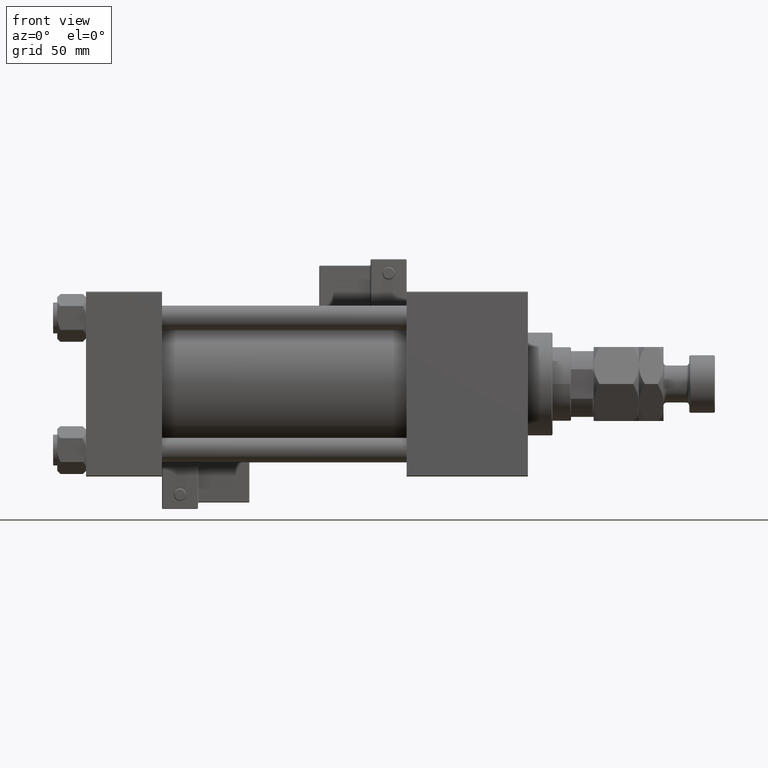
[diagram: clean part render]
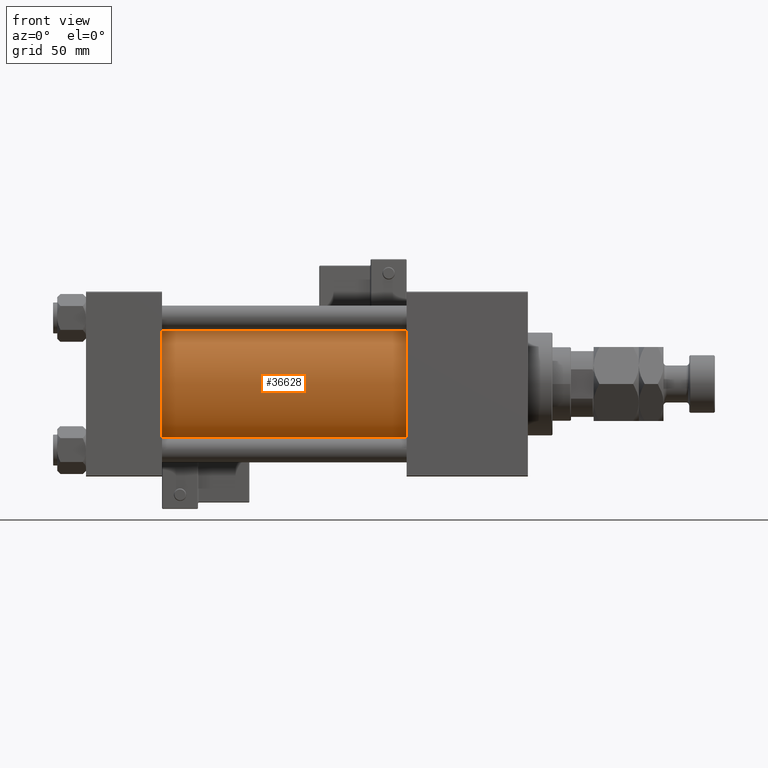
[diagram: same view with one face highlighted and labeled with its STEP entity id]
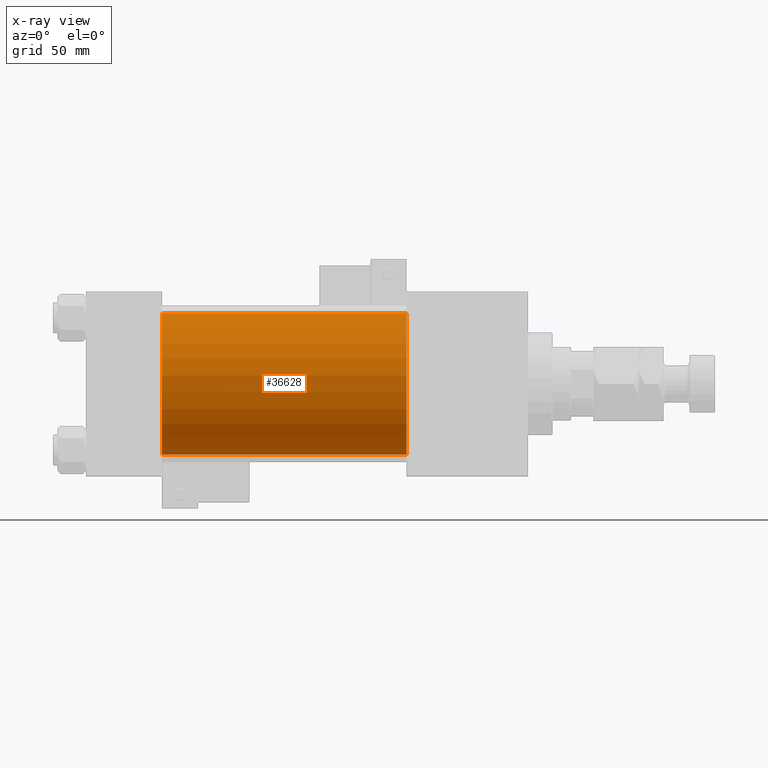
[diagram: x-ray of the same camera — body ghosted, the highlighted face saturated]
A machine part, front view. The second image highlights one B-rep face of the part: STEP entity #36628.
The next image is the same camera in x-ray: the body ghosted, the highlighted face saturated — about 0% of this face is hidden behind the body in this view.
In plain terms, the highlighted cylindrical surface (partial cylindrical patch) has radius 34.5 mm, axis along (-1, -0, -0).
Its self-contained STEP definition (entity closure, byte-faithful):
#2207 = DIRECTION ( 'NONE',  ( -1.000000000000000000, -0.000000000000000000, -0.000000000000000000 ) ) ;
#2565 = VERTEX_POINT ( 'NONE', #30332 ) ;
#2780 = CARTESIAN_POINT ( 'NONE',  ( 37.00000000000000711, 1.622946243093158675E-15, -34.50000000000000000 ) ) ;
#3307 = DIRECTION ( 'NONE',  ( -1.000000000000000000, -0.000000000000000000, -0.000000000000000000 ) ) ;
#6588 = CARTESIAN_POINT ( 'NONE',  ( 156.0000000000000000, -2.602085213965210642E-15, 34.50000000000000000 ) ) ;
#6727 = ORIENTED_EDGE ( 'NONE', *, *, #47230, .T. ) ;
#6954 = VECTOR ( 'NONE', #3307, 1000.000000000000000 ) ;
#8485 = DIRECTION ( 'NONE',  ( 1.000000000000000000, -0.000000000000000000, 0.000000000000000000 ) ) ;
#10051 = EDGE_LOOP ( 'NONE', ( #39624, #39998, #6727, #30034 ) ) ;
#11653 = CARTESIAN_POINT ( 'NONE',  ( 156.0000000000000000, -2.602085213965210642E-15, 34.50000000000000000 ) ) ;
#15626 = LINE ( 'NONE', #44933, #6954 ) ;
#18322 = FACE_OUTER_BOUND ( 'NONE', #10051, .T. ) ;
#19140 = DIRECTION ( 'NONE',  ( -1.000000000000000000, -0.000000000000000000, -0.000000000000000000 ) ) ;
#22743 = EDGE_CURVE ( 'NONE', #2565, #33193, #15626, .T. ) ;
#25194 = DIRECTION ( 'NONE',  ( 0.000000000000000000, 0.000000000000000000, 1.000000000000000000 ) ) ;
#26533 = DIRECTION ( 'NONE',  ( 0.000000000000000000, 0.000000000000000000, 1.000000000000000000 ) ) ;
#26626 = AXIS2_PLACEMENT_3D ( 'NONE', #51440, #19140, #26533 ) ;
#26936 = DIRECTION ( 'NONE',  ( 1.000000000000000000, 0.000000000000000000, 0.000000000000000000 ) ) ;
#27309 = AXIS2_PLACEMENT_3D ( 'NONE', #50382, #8485, #25194 ) ;
#28929 = CIRCLE ( 'NONE', #42902, 34.50000000000000000 ) ;
#30034 = ORIENTED_EDGE ( 'NONE', *, *, #45109, .T. ) ;
#30332 = CARTESIAN_POINT ( 'NONE',  ( 156.0000000000000000, 1.622946243093158675E-15, -34.50000000000000000 ) ) ;
#31040 = CARTESIAN_POINT ( 'NONE',  ( 156.0000000000000000, -2.602085213965210642E-15, 0.000000000000000000 ) ) ;
#33193 = VERTEX_POINT ( 'NONE', #2780 ) ;
#34741 = CYLINDRICAL_SURFACE ( 'NONE', #26626, 34.50000000000000000 ) ;
#36628 = ADVANCED_FACE ( 'NONE', ( #18322 ), #34741, .T. ) ;
#36973 = VECTOR ( 'NONE', #2207, 1000.000000000000000 ) ;
#39624 = ORIENTED_EDGE ( 'NONE', *, *, #22743, .F. ) ;
#39998 = ORIENTED_EDGE ( 'NONE', *, *, #43702, .F. ) ;
#40706 = VERTEX_POINT ( 'NONE', #52970 ) ;
#42902 = AXIS2_PLACEMENT_3D ( 'NONE', #31040, #26936, #43627 ) ;
#43627 = DIRECTION ( 'NONE',  ( 0.000000000000000000, 0.000000000000000000, -1.000000000000000000 ) ) ;
#43702 = EDGE_CURVE ( 'NONE', #44208, #2565, #28929, .T. ) ;
#44208 = VERTEX_POINT ( 'NONE', #11653 ) ;
#44933 = CARTESIAN_POINT ( 'NONE',  ( 156.0000000000000000, 1.622946243093158675E-15, -34.50000000000000000 ) ) ;
#45109 = EDGE_CURVE ( 'NONE', #40706, #33193, #48253, .T. ) ;
#47230 = EDGE_CURVE ( 'NONE', #44208, #40706, #52042, .T. ) ;
#48253 = CIRCLE ( 'NONE', #27309, 34.50000000000000000 ) ;
#50382 = CARTESIAN_POINT ( 'NONE',  ( 37.00000000000000711, -2.602085213965210642E-15, 0.000000000000000000 ) ) ;
#51440 = CARTESIAN_POINT ( 'NONE',  ( 156.0000000000000000, -2.602085213965210642E-15, 0.000000000000000000 ) ) ;
#52042 = LINE ( 'NONE', #6588, #36973 ) ;
#52970 = CARTESIAN_POINT ( 'NONE',  ( 37.00000000000000711, -2.602085213965210642E-15, 34.50000000000000000 ) ) ;